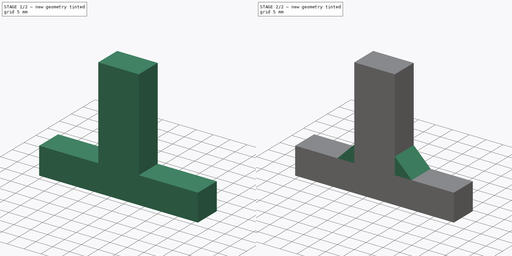
[diagram: build sequence overview — one tinted view per stage of 2, left to right]
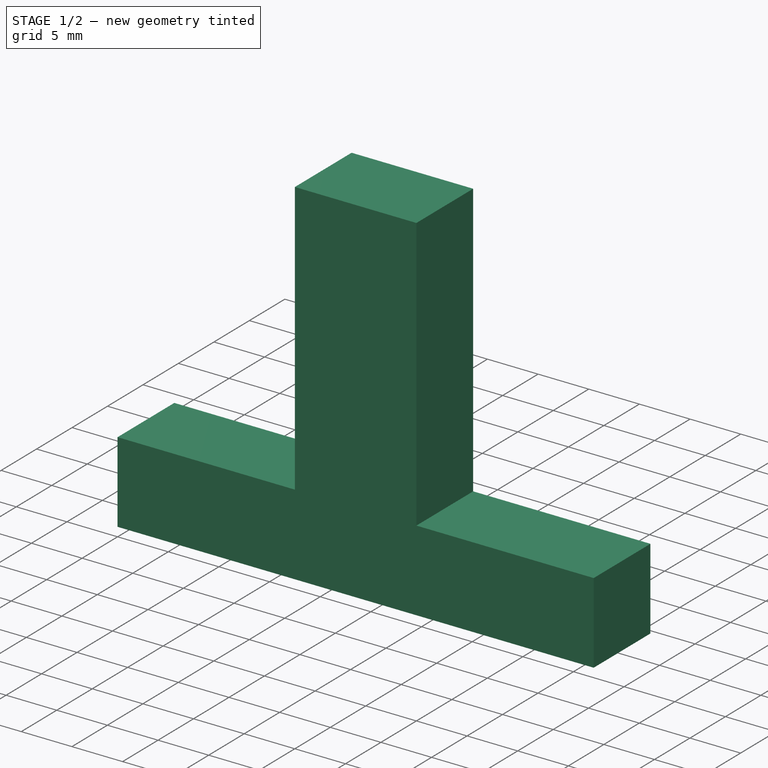
[diagram: stage 1 of 2 — iso view after this stage's code; geometry added in this stage tinted green]
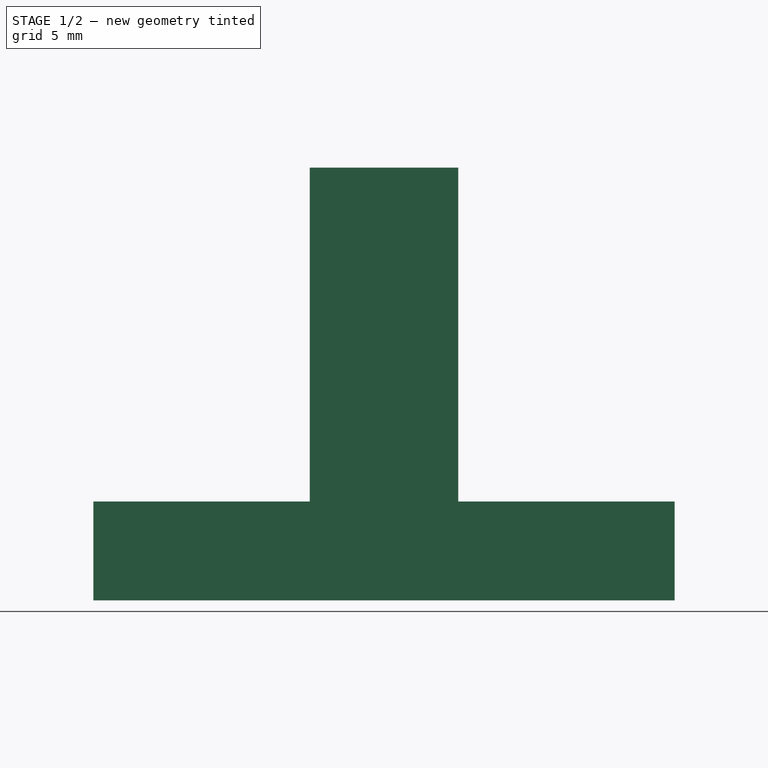
[diagram: stage 1 of 2 — front view after this stage's code; geometry added in this stage tinted green]
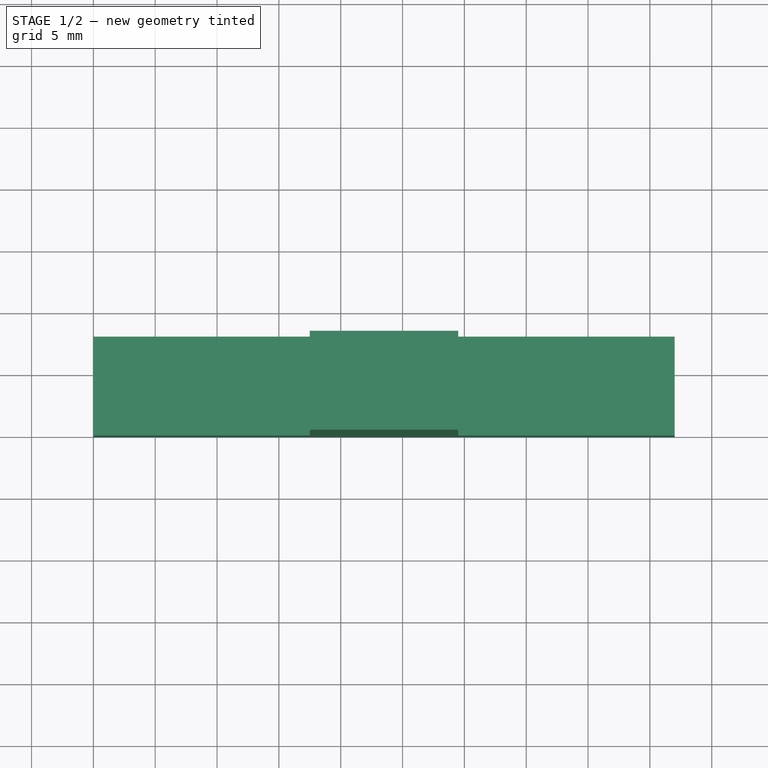
[diagram: stage 1 of 2 — top view after this stage's code; geometry added in this stage tinted green]
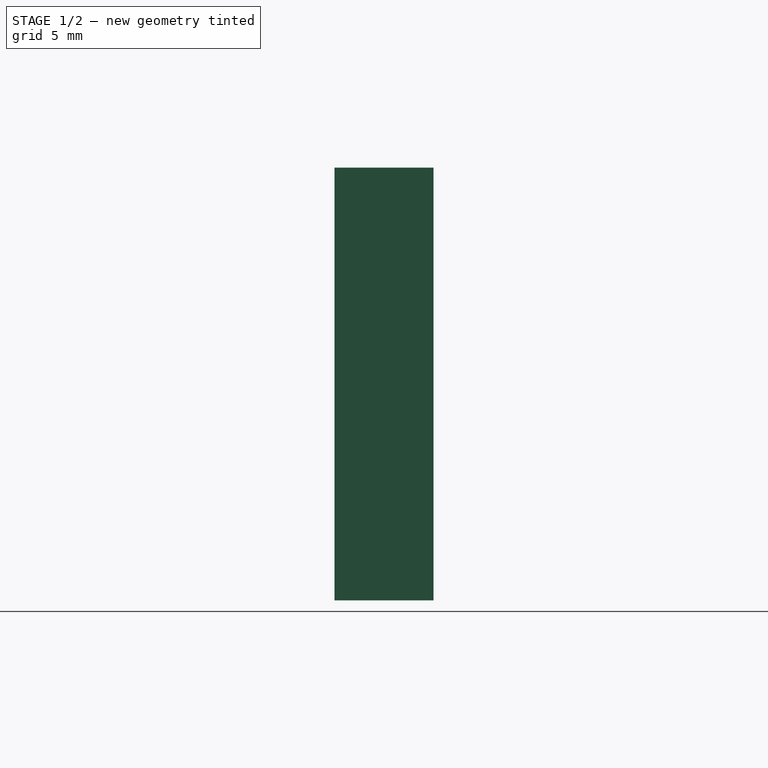
[diagram: stage 1 of 2 — right view after this stage's code; geometry added in this stage tinted green]
FCSTD DOCUMENT  (FreeCAD 0.18R16146 (Git))
Label: doubleBatteryStop
License: All rights reserved
LicenseURL: http://en.wikipedia.org/wiki/All_rights_reserved
objects: Sketcher::SketchObject×3, PartDesign::Pad×2, PartDesign::Pocket×1, PartDesign::Chamfer×1, PartDesign::Body×1
note: 11 computed .brp shape members not serialized (recipe doc carries the construction recipe); baked Part::Feature solids carry a one-line shape summary decoded from their .brp

FEATURE [Sketcher::SketchObject] Sketch
  MapMode = 5
  Support = -> [XY_Plane]
  sketch-geometry (4):
    g0: LineSegment StartX=0 StartY=0 StartZ=0 EndX=47 EndY=0 EndZ=0
    g1: LineSegment StartX=47 StartY=0 StartZ=0 EndX=47 EndY=8 EndZ=0
    g2: LineSegment StartX=47 StartY=8 StartZ=0 EndX=0 EndY=8 EndZ=0
    g3: LineSegment StartX=0 StartY=8 StartZ=0 EndX=0 EndY=0 EndZ=0
  constraints (11):
    c: Coincident(g0,g1)
    c: Coincident(g1,g2)
    c: Coincident(g2,g3)
    c: Coincident(g3,g0)
    c: Horizontal(g0)
    c: Horizontal(g2)
    c: Vertical(g1)
    c: Vertical(g3)
    c: Coincident(g0,g-1)
    c: Distance(g2) = 47
    c: Distance(g1) = 8
FEATURE [PartDesign::Pad] Pad
  Length = 8
  Length2 = 100
  Profile = -> Sketch
  Type = 0
FEATURE [Sketcher::SketchObject] Sketch001
  ExternalGeometry = -> [Pad]
  MapMode = 5
  Placement = pos=(0,0,8) rot=(0,0,1;0rad)
  Support = -> [Pad]
  sketch-geometry (5):
    g0: LineSegment StartX=17.5 StartY=8 StartZ=0 EndX=29.5 EndY=8 EndZ=0
    g1: LineSegment StartX=29.5 StartY=8 StartZ=0 EndX=29.5 EndY=0 EndZ=0
    g2: LineSegment StartX=29.5 StartY=0 StartZ=0 EndX=17.5 EndY=0 EndZ=0
    g3: LineSegment StartX=17.5 StartY=0 StartZ=0 EndX=17.5 EndY=8 EndZ=0
    g4: LineSegment [constr] StartX=23.5 StartY=8 StartZ=0 EndX=23.5 EndY=0 EndZ=0
  constraints (14):
    c: Coincident(g0,g1)
    c: Coincident(g1,g2)
    c: Coincident(g2,g3)
    c: Coincident(g3,g0)
    c: Horizontal(g0)
    c: Horizontal(g2)
    c: Vertical(g1)
    c: Vertical(g3)
    c: PointOnObject(g1,g-1)
    c: PointOnObject(g4,g2)
    c: Vertical(g4)
    c: Symmetric(g-3,g-3,g4)
    c: Symmetric(g0,g0,g4)
    c: Distance(g0,g0) = 12
FEATURE [PartDesign::Pad] Pad001
  BaseFeature = -> Pad
  Length = 27
  Length2 = 100
  Profile = -> Sketch001
  Type = 0
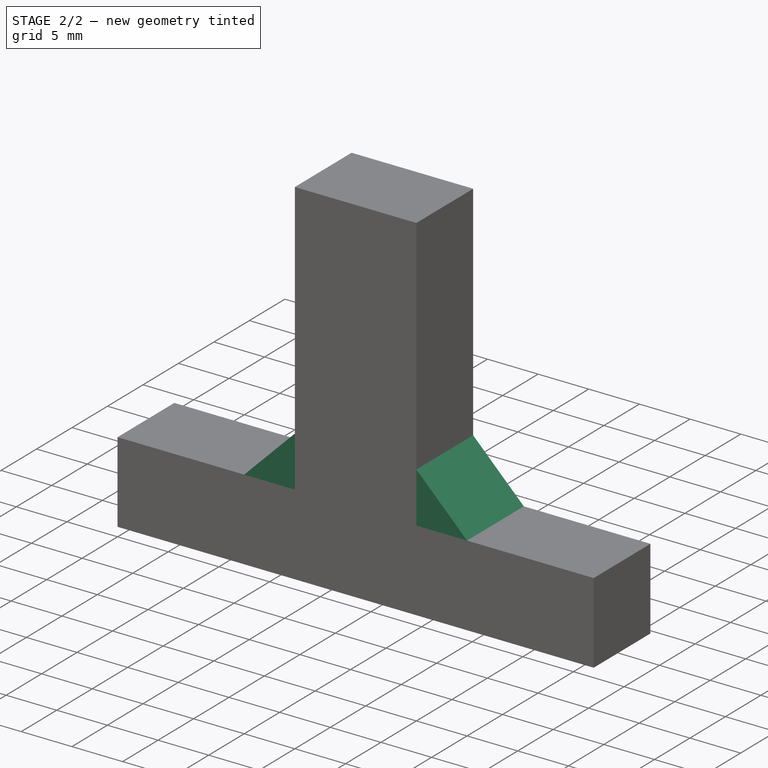
[diagram: stage 2 of 2 — iso view after this stage's code; geometry added in this stage tinted green]
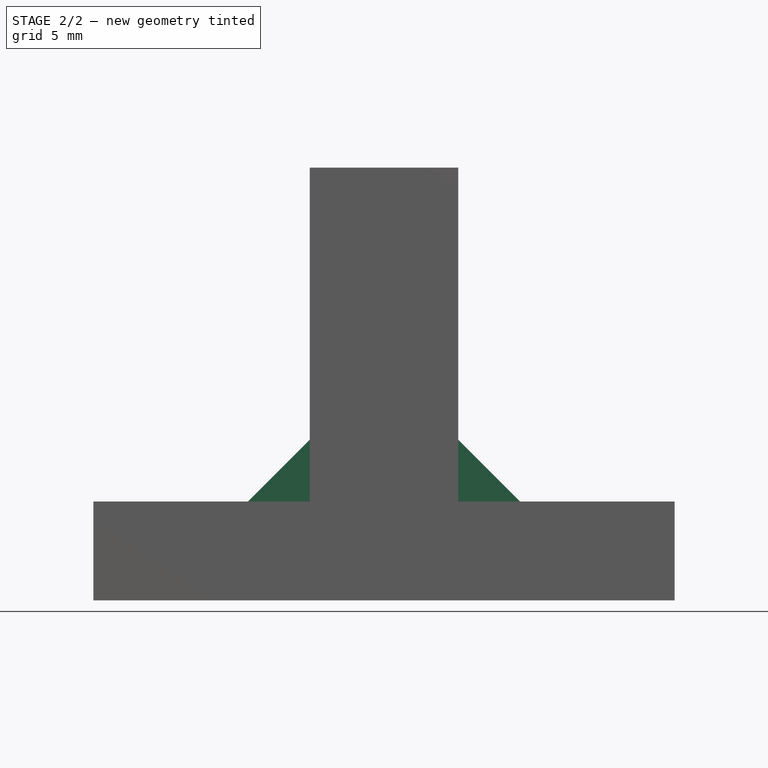
[diagram: stage 2 of 2 — front view after this stage's code; geometry added in this stage tinted green]
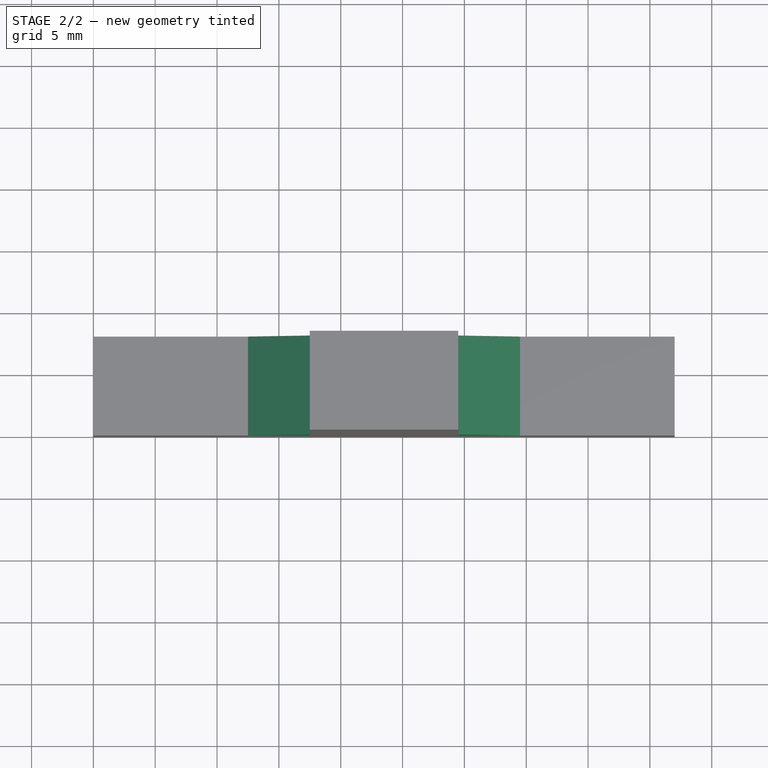
[diagram: stage 2 of 2 — top view after this stage's code; geometry added in this stage tinted green]
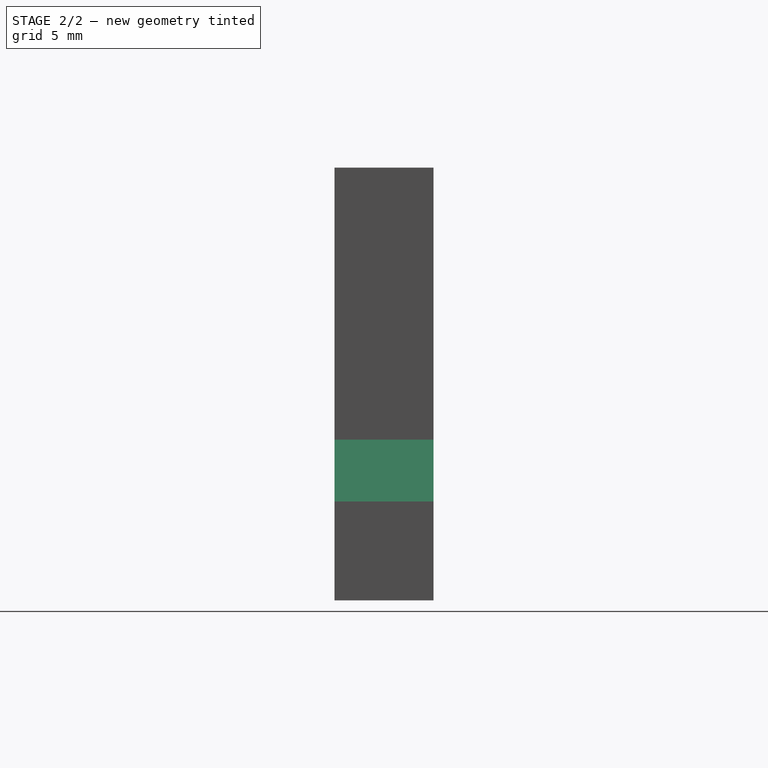
[diagram: stage 2 of 2 — right view after this stage's code; geometry added in this stage tinted green]
FEATURE [Sketcher::SketchObject] Sketch002
  ExternalGeometry = -> [Pad001]
  MapMode = 5
  Placement = pos=(0,0,0) rot=(1,0,0;3.14159rad)
  Support = -> [Pad001]
  sketch-geometry (4):
    g0: LineSegment [constr] StartX=47 StartY=-4 StartZ=0 EndX=0 EndY=-4 EndZ=0
    g1: LineSegment [constr] StartX=23.5 StartY=-8 StartZ=0 EndX=23.5 EndY=0 EndZ=0
    g2: Circle CenterX=36 CenterY=-4 CenterZ=0 NormalX=0 NormalY=0 NormalZ=1 AngleXU=0 Radius=1.5
    g3: Circle CenterX=11 CenterY=-4 CenterZ=0 NormalX=0 NormalY=0 NormalZ=1 AngleXU=0 Radius=1.5
  constraints (11):
    c: PointOnObject(g0,g-2)
    c: Horizontal(g0)
    c: PointOnObject(g1,g-1)
    c: Vertical(g1)
    c: Symmetric(g-4,g-3,g0)
    c: Symmetric(g-4,g-4,g1)
    c: PointOnObject(g2,g0)
    c: Radius(g2) = 1.5
    c: Equal(g2,g3) = 1.5
    c: Distance(g3,g2) = 25
    c: Symmetric(g3,g2,g1)
FEATURE [PartDesign::Pocket] Pocket
  BaseFeature = -> Pad001
  Length = 7
  Length2 = 100
  Profile = -> Sketch002
  Type = 0
FEATURE [PartDesign::Chamfer] Chamfer
  Base = -> Pocket [Edge17,Edge21]
  BaseFeature = -> Pocket
  Size = 5
FEATURE [PartDesign::Body] Body
  Group = -> [Sketch,Pad,Sketch001,Pad001,Sketch002,Pocket,Chamfer]
  Origin = -> Origin
  Tip = -> Chamfer
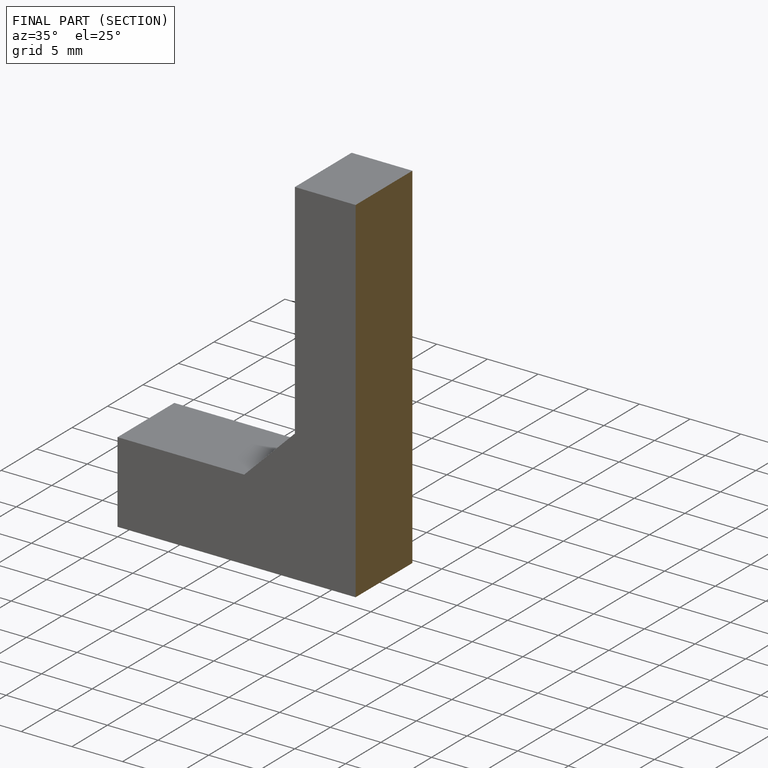
[diagram: finished part — half-section view (interior)]
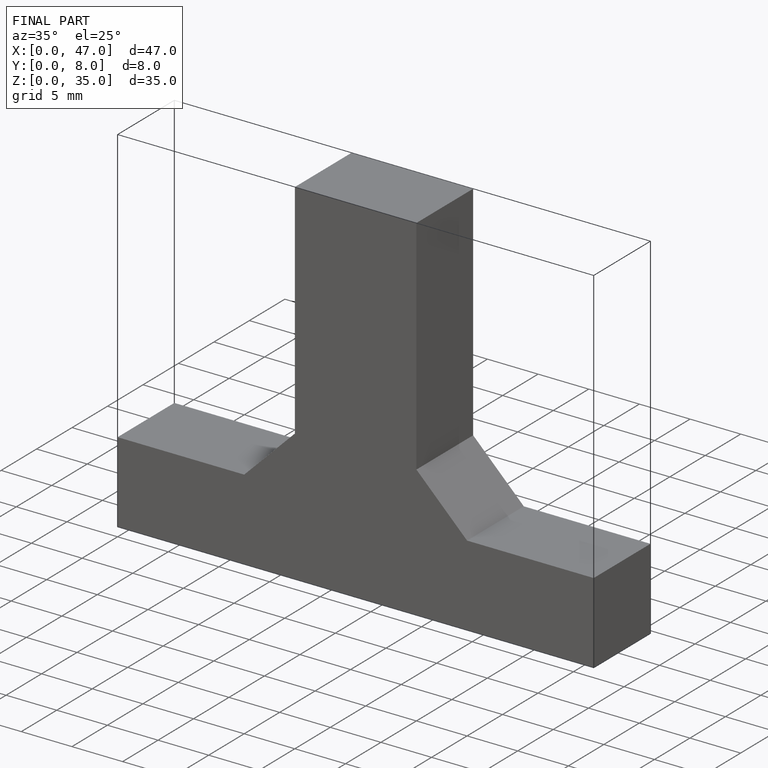
[diagram: finished part — iso view with bounding-box wireframe]
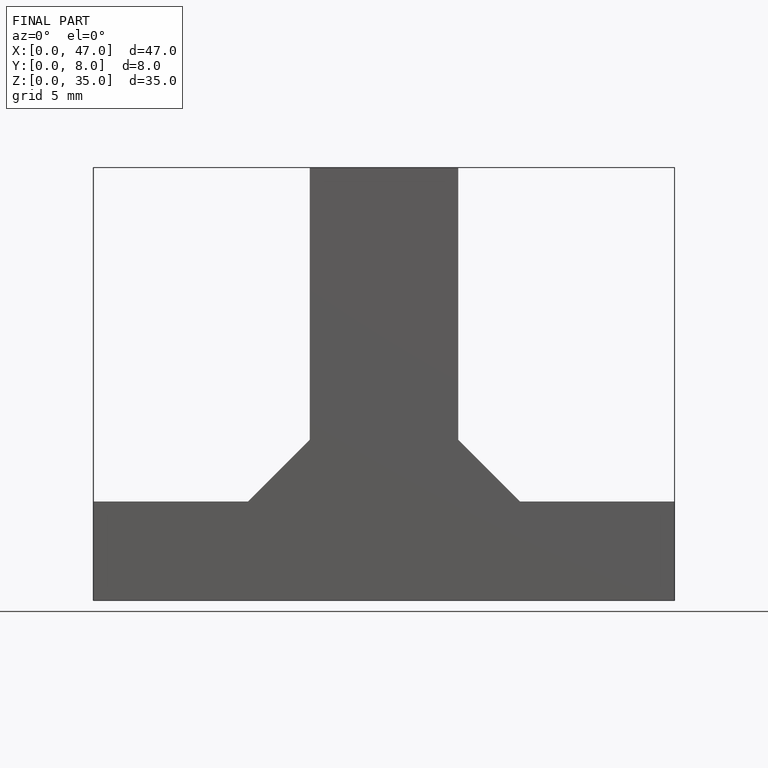
[diagram: finished part — front view with bounding-box wireframe]
